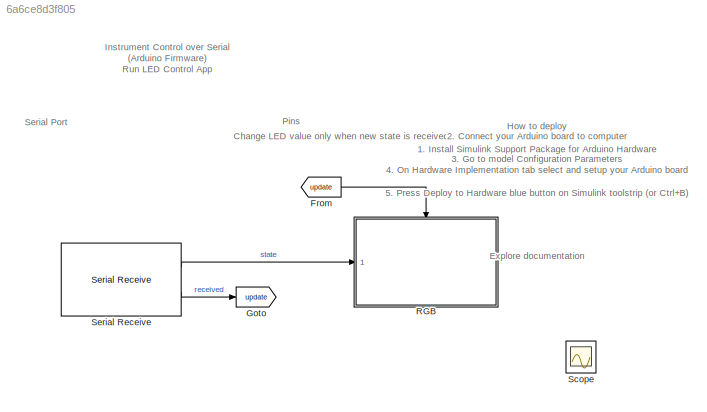
MODEL slx_6a6ce8d3f805
KIND model
CONFIG AbsTol = auto
CONFIG EnableMultiTasking = off
CONFIG FixedStep = auto
CONFIG MaxStep = auto
CONFIG MinStep = auto
CONFIG RelTol = 1e-3
CONFIG SampleTimeConstraint = Unconstrained
CONFIG Solver = FixedStepDiscrete
CONFIG SolverName = FixedStepDiscrete
CONFIG StartTime = 0.0
CONFIG StopTime = 10
BLOCK [From] From
  GotoTag = update
  TagVisibility = global
BLOCK [Goto] Goto
  GotoTag = update
  TagVisibility = global
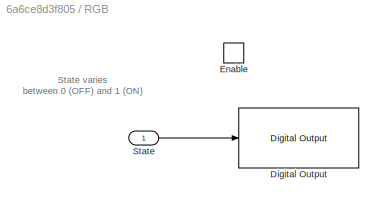
BLOCK [SubSystem] RGB
  Ports = [1, 0, 1]
  RequestExecContextInheritance = off
  TreatAsAtomicUnit = on
BLOCK [Reference] RGB/Digital Output  REF=arduinolib/Digital Output
  Ports = [1]
  SourceBlock = arduinolib/Digital Output
  SourceProductBaseCode = ARDUINO
  SourceProductName = Simulink Support Package for Arduino Hardware
  SourceType = Arduino Digital Output
BLOCK [EnablePort] RGB/Enable
  Ports = []
BLOCK [Inport] RGB/State
  IconDisplay = Port number
  OutDataTypeStr = uint8
BLOCK [Scope] Scope
  Floating = off
  IOType = viewer
  NumInputPorts = 1
  Ports = []
  ScopeSpecificationString = Simulink.scopes.TimeScopeBlockCfg('CurrentConfiguration', extmgr.ConfigurationSet(extmgr.Configuration('Core','General UI',true),extmgr.Configuration('Core','Source UI',true),extmgr.Configuration('Sources','WiredSimulink',true),extmgr.Configuration('Visuals','Time Domain',true,'SerializedDisplays',{struct('MinYLimReal','-0.125','MaxYLimReal','1.125','YLabelReal','','MinYLimMag','0.00000','MaxYLimM...<+1308ch>
BLOCK [Reference] Serial Receive  REF=arduinolib/Serial Receive
  AttributesFormatString = Ts = %<SampleTime>
  Ports = [0, 2]
  SourceBlock = arduinolib/Serial Receive
  SourceProductBaseCode = ARDUINO
  SourceProductName = Simulink Support Package for Arduino Hardware
  SourceType = Arduino Serial Receive
ANNOTATION (root): Instrument Control over Serial (Arduino Firmware) Run LED Control App
ANNOTATION (root): Explore documentation
ANNOTATION (root): How to deploy 1. Install Simulink Support Package for Arduino Hardware 2. Connect your Arduino board to computer 3. Go to model Configuration Parameters 4. On Hardware Implementation tab select and setup your Arduino board 5. Press Deploy to Hardware blue button on Simulink toolstrip (or Ctrl+B)
ANNOTATION (root): Change LED value only when new state is received
ANNOTATION (root): Pins
ANNOTATION (root): Serial Port
ANNOTATION RGB: State varies between 0 (OFF) and 1 (ON)
LINE From:1 -> RGB:enable
LINE RGB/State:1 -> RGB/Digital Output:1
LINE Serial Receive:1 -> RGB:1
LINE Serial Receive:2 -> Goto:1
